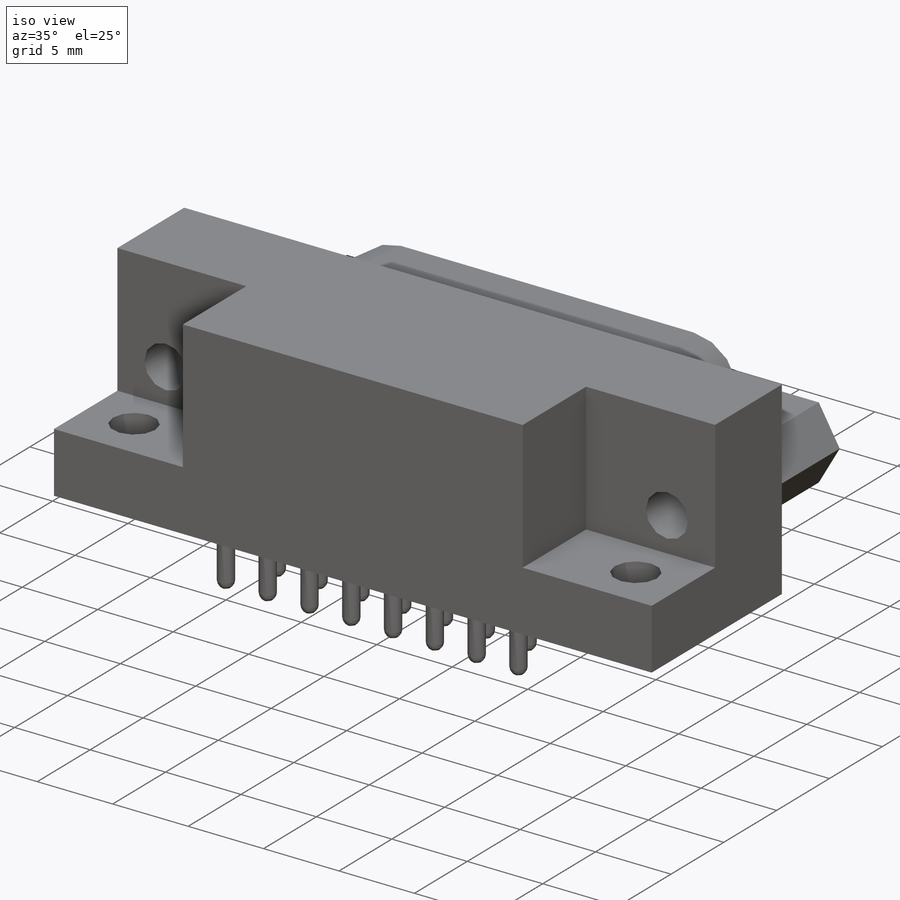
[diagram: iso view]
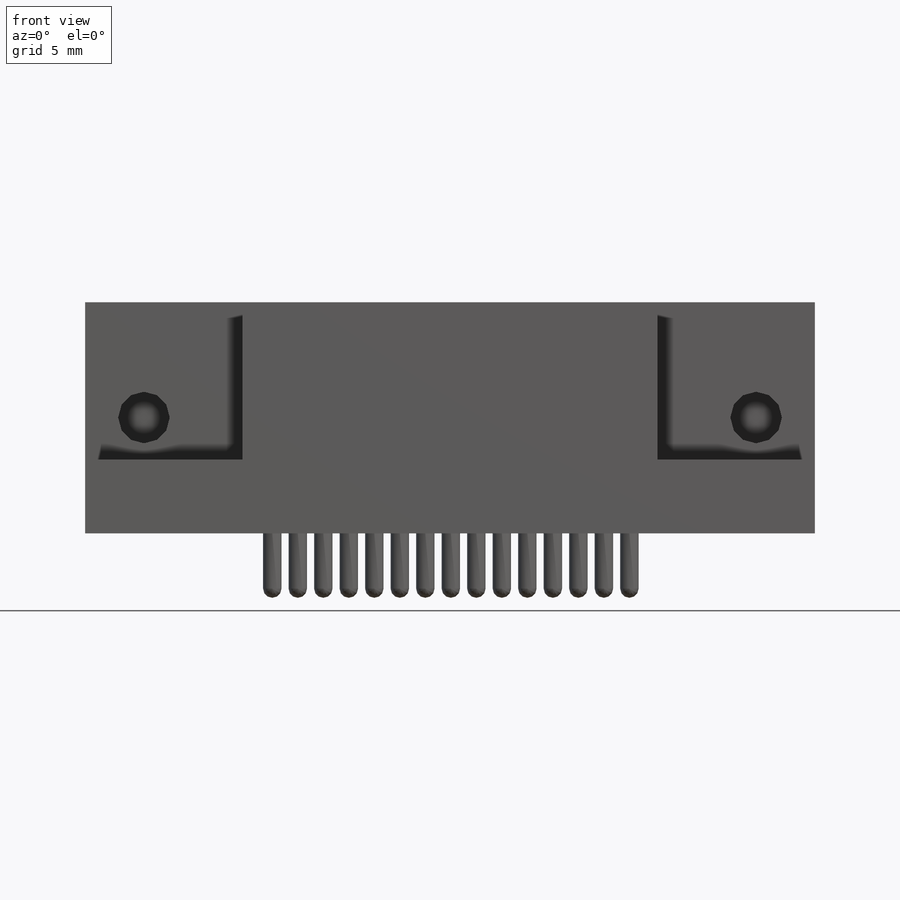
[diagram: front view]
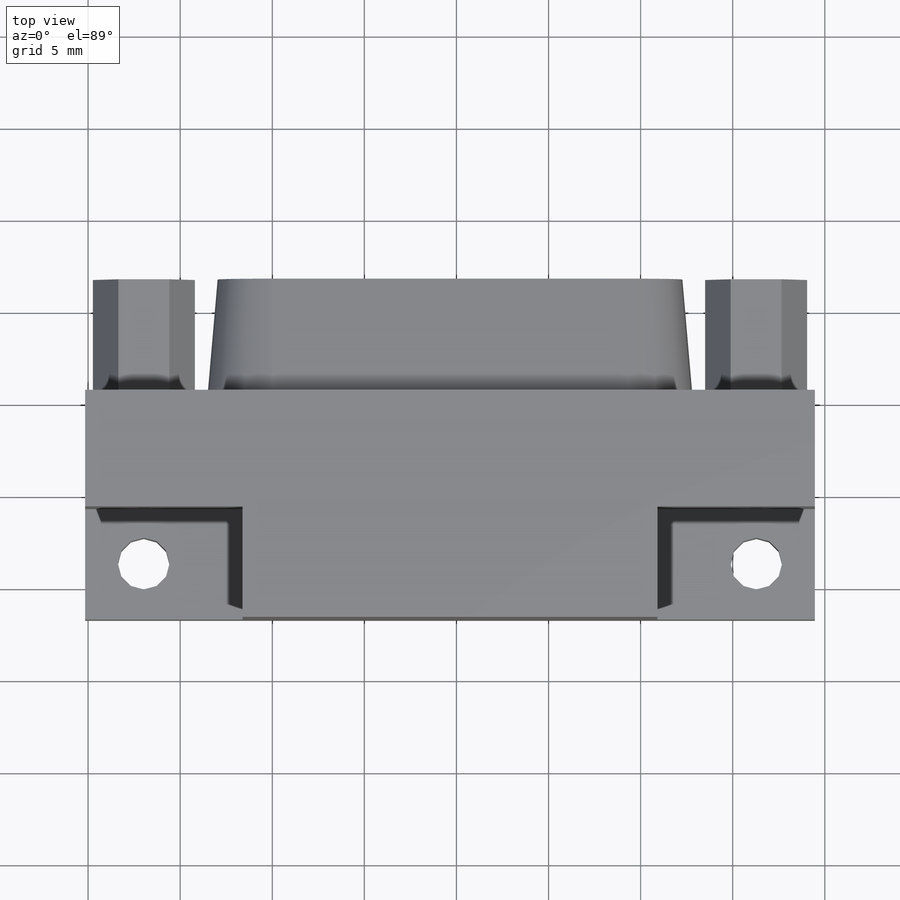
[diagram: top view]
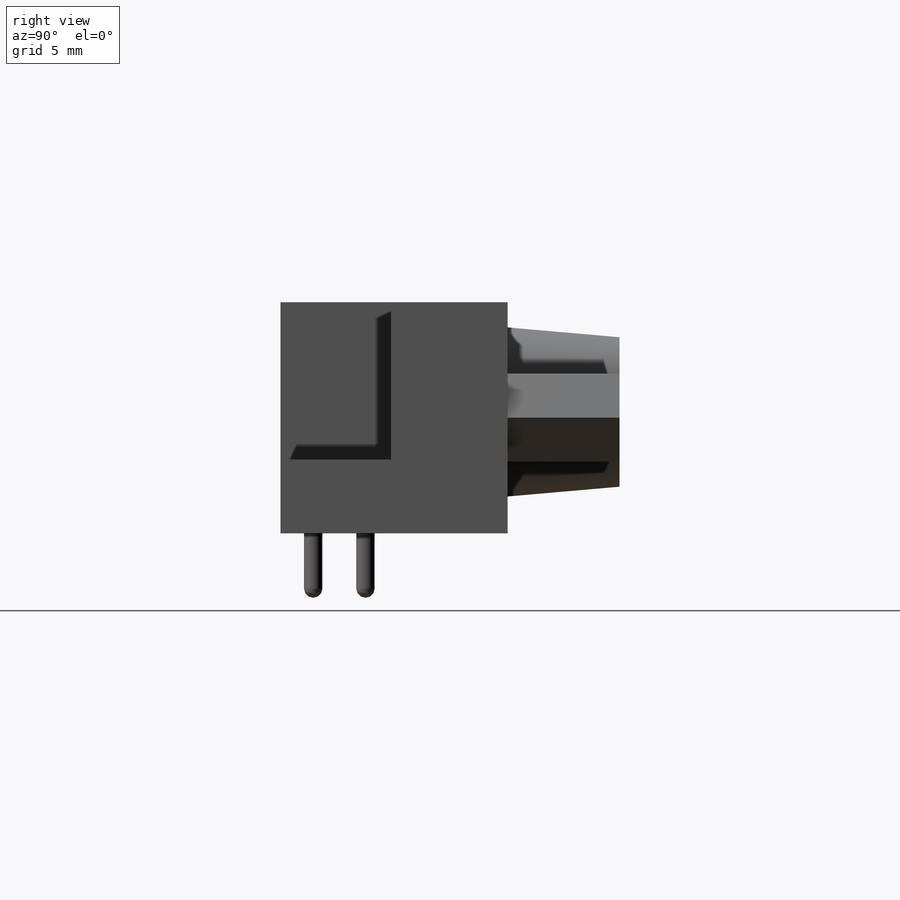
[diagram: right view]
SOLIDWORKS PART (.sldprt)
format: sldprt  version: not decoded by parser v0  size: 514,048 bytes
history: native  units: mm
features: sketch x13, cut_extrude x7, extrude x5, pattern_linear x4, chamfer x2, dome x2, material x1, plane x1, mirror x1 (+12 scaffold rows collapsed)
feature tree (48):
  scaffold x12  (default folders/planes/origin — collapsed)
  material  "Material <not specified>"
  sketch  "Sketch1"  dims[D1=12.33mm D2=39.62mm D3=1.77mm D4=10.16mm]
  extrude  "Base-Extrude"  Depth=12.55mm
  sketch  "Sketch2"  dims[D1=8.55mm D2=6.0mm]
  cut_extrude  "Cut-Extrude1"  Depth=8.55mm
  sketch  "Sketch3"  dims[D1=2.8mm D2=3.18mm D3=3.04mm]
  cut_extrude  "Cut-Extrude2"  [1 undecoded]
  sketch  "Sketch4"  dims[D1=3.19mm D2=6.28mm D3=2.77mm]
  extrude  "Boss-Extrude1"  Depth=6.07mm
  sketch  "Sketch5"  dims[D1=2.8mm]
  cut_extrude  "Cut-Extrude3"  [1 undecoded]
  sketch  "Sketch6"  dims[D3=3.48mm D1=9.695mm D2=8.31mm D4=9.18mm D5=1.37mm]
  extrude  "Boss-Extrude2"  Depth=6.07mm
  plane  "Centreline Plane"
  sketch  "Sketch13"
  cut_extrude  "Cut-Extrude7"  Depth=5mm
  mirror  "Mirror1"
  sketch  "Sketch7"  dims[D1=1.0mm D2=4.86mm D3=10.61mm]
  cut_extrude  "Cut-Extrude4"  Depth=9.47mm
  chamfer  "Chamfer1"  Distance=0.55mm Angle=45deg
  pattern_linear  "LPattern1"  Count1=8 Count2=1 Spacing1=2.75mm Spacing2=50mm
  sketch  "Sketch8"  dims[D1=2.84mm]
  cut_extrude  "Cut-Extrude5"  [1 undecoded]
  chamfer  "Chamfer2"  Distance=0.55mm Angle=45deg
  pattern_linear  "LPattern2"  Count1=7 Count2=1 Spacing1=2.75mm Spacing2=50mm
  sketch  "Sketch9"  dims[D1=1.0mm]
  extrude  "Boss-Extrude3"  Depth=3mm
  dome  "Dome1"
  pattern_linear  "LPattern3"  Count1=8 Count2=1 Spacing1=2.77mm Spacing2=50mm
  sketch  "Sketch10"  dims[D1=2.84mm]
  extrude  "Boss-Extrude4"  Depth=3mm
  dome  "Dome2"
  pattern_linear  "LPattern4"  Count1=7 Count2=1 Spacing1=2.77mm Spacing2=50mm
  sketch  "Sketch11"  dims[D1=0.4mm]
  cut_extrude  "Cut-Extrude6"  Depth=0.001mm
  sketch  "Component_Outline"
decode coverage: 26 of 34 modeling features carry decoded parameters
note: 3 parameter values undecoded
summary: no parameter record found for 3 features
note: suppression state not decoded; provenance and decode notes live in map.json
